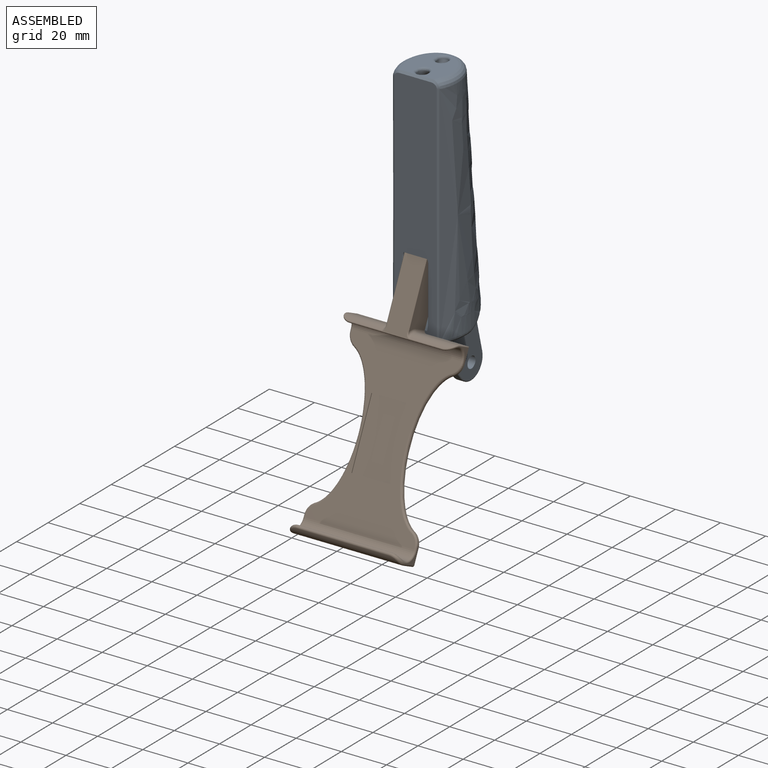
[diagram: assembled view]
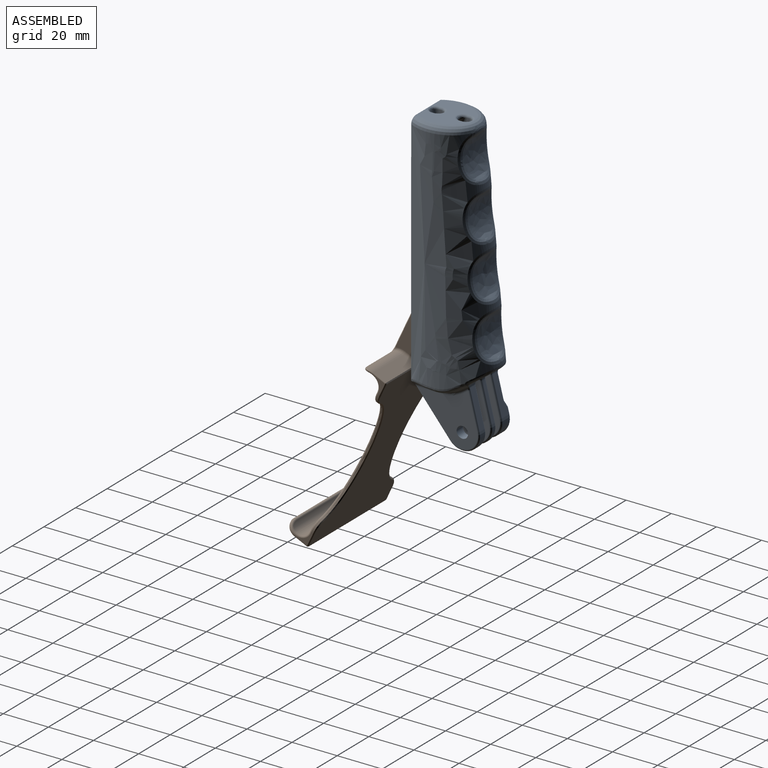
[diagram: assembled view, second angle]
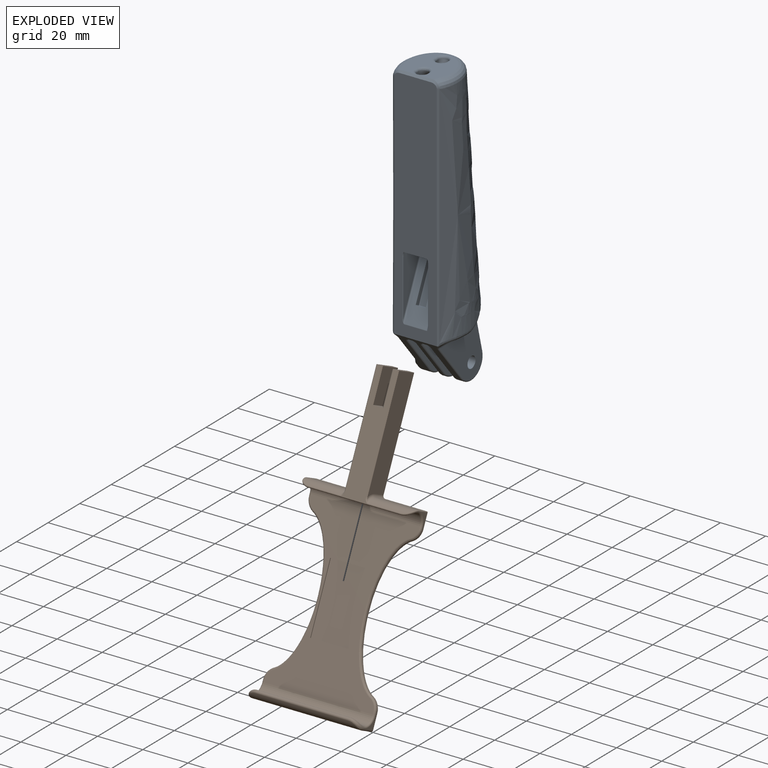
[diagram: exploded view]
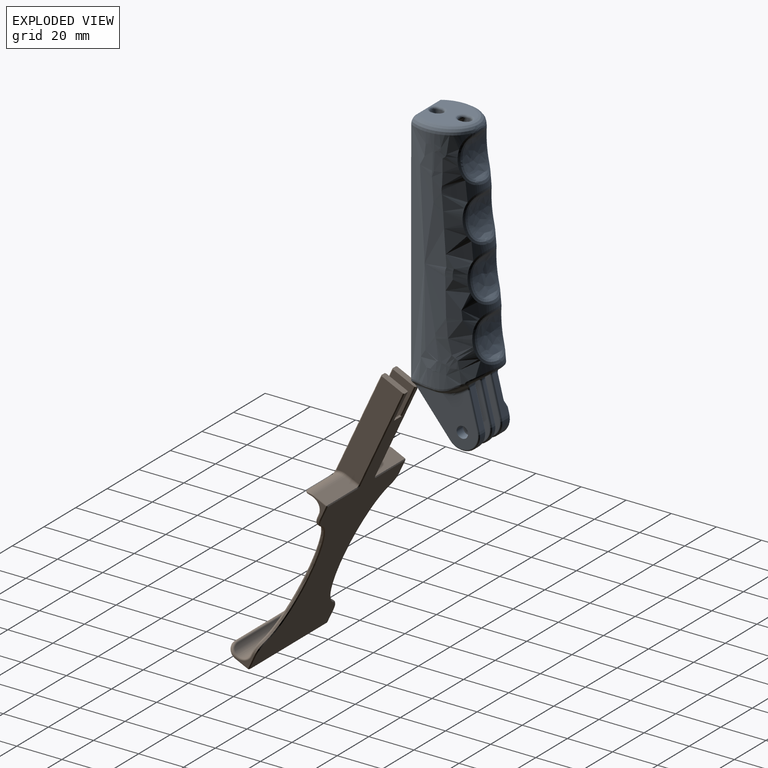
[diagram: exploded view, second angle]
ASSEMBLY  parts=2 mates=2
PART A: 201 faces, bbox 28.1x37x129.2 mm
  f0: plane 20.36x19.08mm, normal (0,0,1), area 246.6mm2, adj f1,f186,f187,f192,f193,f194,f195,f196
  f1: plane 13.96x0.9mm, normal (0,-0.71,0.71), area 17.8mm2, adj f0,f2,f184,f185
  f2: plane 105.15x19.08mm, normal (0,-1,0), area 1653.7mm2, adj f1,f3,f140,f141,f142,f143,f144,f177
  f3: bspline ~1.57x1.53mm, area 0.8mm2, adj f2,f4,f139,f140,f143
  f4: bspline ~2.24x1.94mm, area 2.6mm2, adj f3,f5,f138,f143
  f5: cylinder r=0.8mm len=12.85mm, axis (0,0.64,-0.77), area 20.2mm2, adj f4,f6,f137,f143
  f6: bspline ~2.13x1.36mm, area 1.6mm2, adj f5,f7,f136,f143
  f7: bspline ~4.3x3.46mm, area 1.8mm2, adj f6,f8,f135,f143
  f8: sphere r=0.8mm, area 0.1mm2, adj f7,f9,f134
  f9: cylinder r=0.8mm len=2.47mm, axis (0,0.64,-0.77), area 3.2mm2, adj f8,f10,f133,f143
  f10: torus R=6.7mm, axis (-1,0,0), area 24.4mm2, adj f9,f11,f132,f133
  f11: cylinder r=7.5mm len=13.25mm, axis (-1,0,0), area 85.9mm2, adj f10,f12,f131,f143
  f12: torus R=6.7mm, axis (1,0,0), area 24.4mm2, adj f11,f13,f129,f130
  f13: plane 26.28x25.23mm, normal (1,0,0), area 361.9mm2, adj f12,f14,f117,f118,f119,f129,f130
  f14: cylinder r=1mm len=22.3mm, axis (0,-0.97,-0.25), area 35.1mm2, adj f13,f15,f116,f117
  f15: plane 22.05x5.67mm, normal (0,0.25,-0.97), area 29.6mm2, adj f14,f16,f114,f115
  f16: cylinder r=8mm len=2.42mm, axis (1,0,0), area 3.5mm2, adj f15,f17,f113,f117
  f17: torus R=9mm, axis (1,0,0), area 2.2mm2, adj f16,f18,f111,f112,f115
  f18: cylinder r=1mm len=0.07mm, axis (0,0.83,0.55), area 0mm2, adj f17,f19,f113
  f19: bspline ~0.2x0.19mm, area 0mm2, adj f18,f20,f111
  f20: cylinder r=2mm len=5.1mm, axis (-1,0,0), area 6.6mm2, adj f19,f21,f107,f108,f109,f110,f111,f113
  f21: bspline ~0.2x0.19mm, area 0mm2, adj f20,f22,f107
  f22: cylinder r=1mm len=0.07mm, axis (0,0.83,0.55), area 0mm2, adj f21,f23,f113
  f23: torus R=9mm, axis (1,0,0), area 2.2mm2, adj f22,f24,f105,f106,f107
  f24: plane 26.28x25.23mm, normal (1,0,0), area 361.9mm2, adj f23,f25,f31,f101,f102,f106,f108
  f25: torus R=6.7mm, axis (1,0,0), area 24.4mm2, adj f24,f26,f31,f101
  f26: cylinder r=7.5mm len=13.25mm, axis (-1,0,0), area 30.3mm2, adj f25,f27,f109,f143
  f27: torus R=6.7mm, axis (1,0,0), area 24.4mm2, adj f26,f28,f30,f112
  f28: cylinder r=0.8mm len=17.74mm, axis (0,0.64,-0.77), area 28.3mm2, adj f27,f29,f112,f143
  f29: bspline ~2.11x2.08mm, area 2.4mm2, adj f28,f114,f115,f143
  f30: cylinder r=0.8mm len=16.63mm, axis (0,-0.25,0.97), area 21.3mm2, adj f27,f109,f110,f112
  f31: cylinder r=0.8mm len=17.74mm, axis (0,-0.64,0.77), area 28.3mm2, adj f24,f25,f32,f143
  f32: bspline ~1.9x1.88mm, area 2.4mm2, adj f31,f33,f106,f143
  f33: cylinder r=0.8mm len=1.3mm, axis (1,0,0), area 1.2mm2, adj f32,f34,f100,f143
  f34: plane 22.05x5.67mm, normal (0,0.25,-0.97), area 29.6mm2, adj f33,f35,f105,f106
  f35: cylinder r=1mm len=22.3mm, axis (0,0.97,0.25), area 35.1mm2, adj f34,f36,f99,f100
  f36: plane 26.28x25.23mm, normal (-1,0,0), area 361.9mm2, adj f35,f37,f38,f96,f97,f98,f99
  f37: cylinder r=0.8mm len=17.74mm, axis (0,0.64,-0.77), area 28.3mm2, adj f36,f38,f100,f143
  f38: torus R=6.7mm, axis (1,0,0), area 24.4mm2, adj f36,f37,f39,f96
  f39: cylinder r=7.5mm len=13.25mm, axis (-1,0,0), area 57.6mm2, adj f38,f40,f95,f143
  f40: torus R=6.8mm, axis (1,0,0), area 21.5mm2, adj f39,f41,f93,f94
  f41: plane 26.59x24.02mm, normal (1,0,0), area 329.4mm2, adj f40,f42,f43,f90,f91,f93,f94
  f42: cylinder r=2.55mm len=5.1mm, axis (1,0,0), area 63.3mm2, adj f41,f98
  f43: torus R=17mm, axis (1,0,0), area 28.8mm2, adj f41,f44,f89,f90,f91
  f44: bspline ~4.81x4.17mm, area 2.8mm2, adj f43,f45,f49,f88
  f45: bspline ~10.99x4.6mm, area 24.1mm2, adj f44,f46,f49,f89
  f46: bspline ~8.95x3.33mm, area 19.6mm2, adj f45,f47,f48,f49
  f47: plane 5.86x0.78mm, normal (0,0,-1), area 2.9mm2, adj f46,f89,f91
  f48: bspline ~10.98x4.25mm, area 18.8mm2, adj f46,f49,f91,f141,f142
  f49: bspline ~102.23x36.94mm, area 5468.5mm2, adj f44,f45,f46,f48,f50,f51,f53,f54
  f50: bspline ~21.29x18.54mm, area 131.7mm2, adj f49
  f51: bspline ~21.2x18.42mm, area 129.9mm2, adj f49,f52
  f52: extruded ~17.3x14.79mm, area 238.5mm2, adj f51
  f53: bspline ~21.16x18.39mm, area 129mm2, adj f49
  f54: bspline ~20.82x18.46mm, area 116.3mm2, adj f49,f55,f56
  f55: extruded ~17.25x14.81mm, area 238.3mm2, adj f54,f56
  f56: bspline ~6.77x3.07mm, area 17.1mm2, adj f54,f55,f186
  f57: bspline ~11.04x3.34mm, area 19.6mm2, adj f49,f58,f74,f139
  f58: plane 5.84x0.78mm, normal (0,0,-1), area 2.9mm2, adj f57,f59,f138
  f59: cylinder r=15mm len=7.47mm, axis (1,0,0), area 3mm2, adj f58,f60,f74
  f60: torus R=17mm, axis (1,0,0), area 28.8mm2, adj f59,f61,f75,f137,f138
  f61: cylinder r=2mm len=4.54mm, axis (0,0.83,0.55), area 8.7mm2, adj f60,f62,f64,f69,f76,f137
  f62: bspline ~0.86x0.59mm, area 0.2mm2, adj f61,f63,f64,f77
  f63: bspline ~1.49x1.26mm, area 0.3mm2, adj f62,f76,f77
  f64: bspline ~2.07x1.82mm, area 1.6mm2, adj f61,f62,f65,f69
  f65: cylinder r=2mm len=5.95mm, axis (-1,0,0), area 10.3mm2, adj f64,f66,f68,f77,f113,f118,f131
  f66: bspline ~0.2x0.19mm, area 0mm2, adj f65,f67,f68
  f67: cylinder r=1mm len=0.07mm, axis (0,0.83,0.55), area 0mm2, adj f66,f113,f117
  f68: bspline ~2.1x1.77mm, area 1.8mm2, adj f65,f66,f117,f118
  f69: bspline ~1.14x0.91mm, area 1mm2, adj f61,f64,f70,f131
  f70: cylinder r=0.8mm len=9.4mm, axis (0,-0.25,0.97), area 11.9mm2, adj f69,f71,f131,f137
  f71: bspline ~1.89x1.28mm, area 1.6mm2, adj f70,f72,f131,f136
  f72: bspline ~5.04x2.66mm, area 1.8mm2, adj f71,f73,f131,f135
  f73: sphere r=0.8mm, area 0.1mm2, adj f72,f132,f134
  f74: bspline ~11.02x4.62mm, area 24.3mm2, adj f49,f57,f59,f75
  f75: bspline ~4.63x4.05mm, area 2.7mm2, adj f49,f60,f74,f76
  f76: bspline ~5.88x4.59mm, area 10.4mm2, adj f49,f61,f63,f75
  f77: bspline ~3.33x3.31mm, area 3.9mm2, adj f49,f62,f63,f65,f78
  f78: bspline ~23.48x9.24mm, area 62.2mm2, adj f49,f77,f79,f113
  f79: bspline ~3.35x3.34mm, area 4mm2, adj f49,f78,f80,f86,f87
  f80: cylinder r=2mm len=5.95mm, axis (-1,0,0), area 10.4mm2, adj f79,f81,f83,f84,f95,f97,f113
  f81: bspline ~2.02x1.72mm, area 1.4mm2, adj f80,f82,f86,f90
  f82: bspline ~1.08x0.81mm, area 0.9mm2, adj f81,f90,f93,f95
  f83: bspline ~2.1x1.77mm, area 1.8mm2, adj f80,f84,f97,f99
  f84: bspline ~0.2x0.19mm, area 0mm2, adj f80,f83,f85
  f85: cylinder r=1mm len=0.07mm, axis (0,0.83,0.55), area 0mm2, adj f84,f99,f113
  f86: bspline ~0.7x0.52mm, area 0.2mm2, adj f79,f81,f87,f90
  f87: bspline ~1.68x1.64mm, area 0.3mm2, adj f79,f86,f88
  f88: bspline ~5.88x4.58mm, area 10.3mm2, adj f44,f49,f87,f90
  f89: cylinder r=15mm len=7.43mm, axis (1,0,0), area 3mm2, adj f43,f45,f47
  f90: cylinder r=2mm len=4.55mm, axis (0,-0.83,-0.55), area 8.9mm2, adj f41,f43,f81,f82,f86,f88
  f91: cylinder r=2mm len=12.44mm, axis (0,-1,0), area 32.5mm2, adj f41,f43,f47,f48,f92
  f92: bspline ~2.31x2.11mm, area 2.2mm2, adj f91,f94,f142,f143
  f93: cylinder r=0.7mm len=15.7mm, axis (0,0.25,-0.97), area 17.6mm2, adj f40,f41,f82,f95
  f94: cylinder r=0.7mm len=17.82mm, axis (0,-0.64,0.77), area 24.9mm2, adj f40,f41,f92,f143
  f95: plane 16.43x4.23mm, normal (0,0.97,0.25), area 48.4mm2, adj f39,f80,f82,f93,f96
  f96: cylinder r=0.8mm len=16.63mm, axis (0,-0.25,0.97), area 21.3mm2, adj f36,f38,f95,f97
  f97: torus R=2.8mm, axis (1,0,0), area 0.5mm2, adj f36,f80,f83,f96
  f98: cone r=2.55mm half-angle=45deg, axis (-1,0,0), area 9.8mm2, adj f36,f42
  f99: torus R=9mm, axis (1,0,0), area 2.2mm2, adj f35,f36,f83,f85,f105
  f100: bspline ~2.11x2.08mm, area 2.4mm2, adj f33,f35,f37,f143
  f101: cylinder r=0.8mm len=16.63mm, axis (0,0.25,-0.97), area 21.3mm2, adj f24,f25,f108,f109
  f102: cone r=2.95mm half-angle=45deg, axis (1,0,0), area 9.8mm2, adj f24,f103
  f103: cylinder r=2.55mm len=5.1mm, axis (1,0,0), area 36.9mm2, adj f102,f104
  f104: cone r=2.55mm half-angle=45deg, axis (-1,0,0), area 9.8mm2, adj f103,f112
  f105: cylinder r=8mm len=2.42mm, axis (1,0,0), area 3.5mm2, adj f23,f34,f99,f113
  f106: cylinder r=1mm len=22.3mm, axis (0,-0.97,-0.25), area 35.1mm2, adj f23,f24,f32,f34
  f107: bspline ~2.1x1.77mm, area 1.8mm2, adj f20,f21,f23,f108
  f108: torus R=2.8mm, axis (1,0,0), area 0.5mm2, adj f20,f24,f101,f107
  f109: plane 16.43x4.23mm, normal (0,0.97,0.25), area 25.4mm2, adj f20,f26,f30,f101
  f110: torus R=2.8mm, axis (1,0,0), area 0.5mm2, adj f20,f30,f111,f112
  f111: bspline ~2.1x1.77mm, area 1.8mm2, adj f17,f19,f20,f110
  f112: plane 26.28x25.23mm, normal (-1,0,0), area 361.9mm2, adj f17,f27,f28,f30,f104,f110,f115
  f113: plane 17.98x5.86mm, normal (0,0.55,-0.83), area 86.5mm2, adj f16,f18,f20,f22,f65,f67,f78,f80
  f114: cylinder r=0.8mm len=1.3mm, axis (1,0,0), area 1.2mm2, adj f15,f29,f116,f143
  f115: cylinder r=1mm len=22.3mm, axis (0,0.97,0.25), area 35.1mm2, adj f15,f17,f29,f112
  f116: bspline ~1.9x1.88mm, area 2.4mm2, adj f14,f114,f130,f143
  f117: torus R=9mm, axis (1,0,0), area 2.2mm2, adj f13,f14,f16,f67,f68
  f118: torus R=2.8mm, axis (1,0,0), area 0.5mm2, adj f13,f65,f68,f129
  f119: cone r=2.95mm half-angle=45deg, axis (1,0,0), area 9.8mm2, adj f13,f120
  f120: cylinder r=2.55mm len=5.1mm, axis (1,0,0), area 26.4mm2, adj f119,f121
  f121: cone r=2.95mm half-angle=45deg, axis (-1,0,0), area 9.8mm2, adj f120,f122
  f122: plane 9.7x8.4mm, normal (-1,0,0), area 33.8mm2, adj f121,f123,f124,f125,f126,f127,f128
  f123: plane 4.85x3.4mm, normal (0,0,1), area 16.5mm2, adj f122,f124,f128,f133
  f124: plane 4.2x3.4mm, normal (0,-0.87,0.5), area 16.5mm2, adj f122,f123,f125,f133
  f125: plane 4.2x3.4mm, normal (0,-0.87,-0.5), area 16.5mm2, adj f122,f124,f126,f133
  f126: plane 4.85x3.4mm, normal (0,0,-1), area 16.5mm2, adj f122,f125,f127,f133
  f127: plane 4.2x3.4mm, normal (0,0.87,-0.5), area 16.5mm2, adj f122,f126,f128,f133
  f128: plane 4.2x3.4mm, normal (0,0.87,0.5), area 16.5mm2, adj f122,f123,f127,f133
  f129: cylinder r=0.8mm len=16.63mm, axis (0,0.25,-0.97), area 21.3mm2, adj f12,f13,f118,f131
  f130: cylinder r=0.8mm len=17.74mm, axis (0,-0.64,0.77), area 28.3mm2, adj f12,f13,f116,f143
  f131: plane 16.43x4.25mm, normal (0,0.97,0.25), area 53mm2, adj f11,f65,f69,f70,f71,f72,f129,f132
  f132: cylinder r=0.8mm len=2.67mm, axis (0,0.25,-0.97), area 3.2mm2, adj f10,f73,f131,f133
  f133: plane 13.87x13.87mm, normal (-1,0,0), area 90mm2, adj f9,f10,f123,f124,f125,f126,f127,f128
  f134: torus R=7.17mm, axis (-1,0,0), area 13.4mm2, adj f8,f73,f133,f135
  f135: cone r=7.5mm half-angle=45deg, axis (1,0,0), area 31.3mm2, adj f7,f72,f134,f136
  f136: torus R=9.33mm, axis (1,0,0), area 12.5mm2, adj f6,f71,f135,f137
  f137: plane 24.53x16.49mm, normal (-1,0,0), area 150.9mm2, adj f5,f60,f61,f70,f136,f138
  f138: cylinder r=2mm len=12.39mm, axis (0,1,0), area 32.4mm2, adj f4,f58,f60,f137,f139
  f139: bspline ~10.99x4.26mm, area 18.8mm2, adj f3,f49,f57,f138,f140
  f140: bspline ~102.99x0.94mm, area 90.1mm2, adj f2,f3,f49,f139,f184
  f141: bspline ~108.39x0.81mm, area 90.5mm2, adj f2,f48,f49,f142,f185
  f142: bspline ~1.51x1.45mm, area 0.7mm2, adj f2,f48,f92,f141,f143
  f143: plane 19.82x19.36mm, normal (0,-0.77,-0.64), area 209.4mm2, adj f2,f3,f4,f5,f6,f7,f9,f11
  f144: plane 9.8x0.08mm, normal (0,-0.98,0.22), area 0.8mm2, adj f2,f145,f177,f183
  f145: plane 41.65x19.42mm, normal (0,-0.91,0.42), area 306.1mm2, adj f144,f146,f152,f153,f154,f155,f156,f157
  f146: plane 10.69x4.99mm, normal (0,-0.42,-0.91), area 41.7mm2, adj f145,f147,f148,f151,f152,f159
  f147: cylinder r=0.6mm len=19.75mm, axis (0,0.42,0.91), area 19.5mm2, adj f146,f148,f151,f181
  f148: plane 17.94x9.8mm, normal (0,0.91,-0.42), area 139.8mm2, adj f146,f147,f149,f152,f153,f154,f155,f156
  f149: cylinder r=0.6mm len=19.75mm, axis (0,-0.42,-0.91), area 19.5mm2, adj f148,f150,f157,f179
  f150: plane 44.58x18.7mm, normal (-1,0,0), area 348.5mm2, adj f149,f157,f158,f178
  f151: plane 44.58x18.7mm, normal (1,0,0), area 348.5mm2, adj f146,f147,f159,f182
  f152: plane 16.77x16.19mm, normal (-1,0,0), area 153.4mm2, adj f145,f146,f148,f153
  f153: cylinder r=1mm len=11.12mm, axis (0,-0.91,0.42), area 18.5mm2, adj f145,f148,f152,f154
  f154: plane 10.69x4.99mm, normal (0,-0.42,-0.91), area 22.4mm2, adj f145,f148,f153,f155
  f155: cylinder r=1mm len=11.12mm, axis (0,0.91,-0.42), area 18.5mm2, adj f145,f148,f154,f156
  f156: plane 16.77x16.19mm, normal (1,0,0), area 153.4mm2, adj f145,f148,f155,f157
  f157: plane 10.69x4.99mm, normal (0,-0.42,-0.91), area 41.7mm2, adj f145,f148,f149,f150,f156,f158
  f158: cylinder r=0.6mm len=41.9mm, axis (0,0.42,0.91), area 42.5mm2, adj f145,f150,f157,f177
  f159: cylinder r=0.6mm len=41.9mm, axis (0,-0.42,-0.91), area 42.5mm2, adj f145,f146,f151,f183
  f160: cylinder r=0.3mm len=1.94mm, axis (0,0.91,-0.42), area 0.9mm2, adj f145,f161,f170,f176
  f161: sphere r=0.3mm, area 0.1mm2, adj f160,f162,f169
  f162: cylinder r=0.3mm len=18.16mm, axis (0,0.42,0.91), area 9.4mm2, adj f161,f163,f168,f176
  f163: sphere r=0.3mm, area 0.2mm2, adj f162,f164,f175
  f164: cylinder r=0.3mm len=3.8mm, axis (1,0,0), area 1.8mm2, adj f163,f165,f168,f174
  f165: sphere r=0.3mm, area 0.2mm2, adj f164,f166,f173
  f166: cylinder r=0.3mm len=18.16mm, axis (0,-0.42,-0.91), area 9.4mm2, adj f165,f167,f168,f172
  f167: sphere r=0.3mm, area 0.1mm2, adj f166,f169,f171
  f168: plane 18.04x8.41mm, normal (0,-0.91,0.42), area 75.6mm2, adj f162,f164,f166,f169
  f169: cylinder r=0.3mm len=3.8mm, axis (-1,0,0), area 1.8mm2, adj f161,f167,f168,f170
  f170: plane 3.8x1.81mm, normal (0,-0.42,-0.91), area 7.6mm2, adj f145,f160,f169,f171
  f171: cylinder r=0.3mm len=1.94mm, axis (0,-0.91,0.42), area 0.9mm2, adj f145,f167,f170,f172
  f172: plane 18.88x10.22mm, normal (1,0,0), area 39.8mm2, adj f145,f166,f171,f173
  f173: cylinder r=0.3mm len=1.94mm, axis (0,0.91,-0.42), area 0.9mm2, adj f145,f165,f172,f174
  f174: plane 3.8x1.81mm, normal (0,0.42,0.91), area 7.6mm2, adj f145,f164,f173,f175
  f175: cylinder r=0.3mm len=1.94mm, axis (0,-0.91,0.42), area 0.9mm2, adj f145,f163,f174,f176
  f176: plane 18.88x10.22mm, normal (-1,0,0), area 39.8mm2, adj f145,f160,f162,f175
  f177: bspline ~1.92x0.81mm, area 0.4mm2, adj f2,f144,f158,f178
  f178: plane 25.08x0.2mm, normal (-0.71,-0.71,0), area 7.1mm2, adj f2,f150,f177,f179
  f179: bspline ~1.92x0.81mm, area 0.7mm2, adj f2,f149,f178,f180
  f180: plane 9.8x0.38mm, normal (0,-0.22,-0.98), area 3.8mm2, adj f2,f148,f179,f181
  f181: bspline ~1.92x0.81mm, area 0.7mm2, adj f2,f147,f180,f182
  f182: plane 25.08x0.2mm, normal (0.71,-0.71,0), area 7.1mm2, adj f2,f151,f181,f183
  f183: bspline ~1.92x0.81mm, area 0.4mm2, adj f2,f144,f159,f182
  f184: bspline ~3.29x3.02mm, area 4.5mm2, adj f1,f2,f140,f186
  f185: bspline ~3.29x3mm, area 4.5mm2, adj f1,f2,f141,f186
  f186: bspline ~26.49x25.08mm, area 268.8mm2, adj f0,f49,f56,f184,f185
  f187: cylinder r=1mm len=1.01mm, axis (0,1,0), area 1.6mm2, adj f0,f188,f192,f194
  f188: plane 13.45x5.8mm, normal (1,0,0), area 17.8mm2, adj f187,f189,f191,f196
  f189: torus R=6.8mm, axis (1,0,0), area 165.1mm2, adj f188,f190,f194,f197
  f190: plane 13.45x5.8mm, normal (-1,0,0), area 17.8mm2, adj f189,f191,f193,f198
  f191: torus R=5.8mm, axis (1,0,0), area 78.7mm2, adj f188,f190,f192,f195
  f192: bspline ~6.4x4.04mm, area 14.3mm2, adj f0,f187,f191,f193
  f193: cylinder r=1mm len=1.01mm, axis (0,-1,0), area 1.6mm2, adj f0,f190,f192,f194
  f194: bspline ~6.4x3.96mm, area 12.2mm2, adj f0,f187,f189,f193
  f195: bspline ~6.4x4.04mm, area 14.3mm2, adj f0,f191,f196,f198
  f196: cylinder r=1mm len=1.01mm, axis (0,1,0), area 1.6mm2, adj f0,f188,f195,f197
  f197: bspline ~6.4x3.96mm, area 12.2mm2, adj f0,f189,f196,f198
  f198: cylinder r=1mm len=1.01mm, axis (0,-1,0), area 1.6mm2, adj f0,f190,f195,f197
  f199: extruded ~17.74x4.25mm, area 0mm2
  f200: extruded ~17.67x4.38mm, area 0mm2
PART B: 114 faces, bbox 130.5x51.3x13.8 mm
  f0: plane 5.1x1.1mm, normal (-1,0,0), area 3.6mm2, adj f12,f23,f24,f79,f83,f84,f112,f113
  f1: cylinder r=5.75mm len=18.4mm, axis (0,1,0), area 97.4mm2, adj f35,f70,f71,f72,f75
  f2: plane 6.19x6.15mm, normal (0,-1,0), area 11.1mm2, adj f10,f54,f56,f73,f101
  f3: plane 6.64x6.39mm, normal (0,1,0), area 12.4mm2, adj f9,f39,f43,f45,f60,f61,f93
  f4: plane 6.19x6.15mm, normal (0,1,0), area 11.1mm2, adj f8,f53,f55,f67,f89
  f5: plane 6.64x6.39mm, normal (0,-1,0), area 12.4mm2, adj f11,f37,f44,f46,f65,f66,f97
  f6: extruded ~58.35x10.74mm, area 51.7mm2, adj f10,f11,f50,f99
  f7: extruded ~58.35x10.74mm, area 51.7mm2, adj f8,f9,f49,f91
  f8: cylinder r=6mm len=5.34mm, axis (0,0,1), area 5.3mm2, adj f4,f7,f51,f90
  f9: cylinder r=6mm len=5.34mm, axis (0,0,1), area 5.3mm2, adj f3,f7,f47,f92
  f10: cylinder r=6mm len=5.34mm, axis (0,0,1), area 5.3mm2, adj f2,f6,f52,f100
  f11: cylinder r=6mm len=5.34mm, axis (0,0,1), area 5.3mm2, adj f5,f6,f48,f98
  f12: plane 129.5x49.21mm, normal (0,0,-1), area 3059.6mm2, adj f0,f13,f19,f85,f86,f87,f89,f90
  f13: plane 11.32x2.85mm, normal (-1,0,0), area 31.9mm2, adj f12,f18,f20,f23,f105,f106,f111,f112
  f14: plane 41x0.17mm, normal (-0.86,0,0.51), area 8.3mm2, adj f37,f39,f40,f63
  f15: plane 41x0.04mm, normal (0.86,0,0.51), area 1.9mm2, adj f36,f38,f59,f70
  f16: cylinder r=4.55mm len=48.4mm, axis (0,-1,0), area 526.2mm2, adj f25,f40,f41,f42,f43,f44
  f17: cylinder r=4.55mm len=48.4mm, axis (0,-1,0), area 526.2mm2, adj f25,f55,f56,f57,f58,f59
  f18: plane 49.8x11.78mm, normal (0,0,1), area 384.1mm2, adj f13,f19,f22,f70,f106,f107,f108,f109
  f19: plane 11.32x2.85mm, normal (-1,0,0), area 31.9mm2, adj f12,f18,f21,f24,f85,f108,f110,f113
  f20: plane 47.43x10.52mm, normal (0,-1,0), area 484.8mm2, adj f13,f74,f75,f105,f106
  f21: plane 47.43x10.52mm, normal (0,1,0), area 484.8mm2, adj f19,f76,f77,f85,f108
  f22: plane 8.42x5.1mm, normal (-1,0,0), area 35.1mm2, adj f18,f23,f24,f78,f81,f82,f110,f111
  f23: plane 38.6x10.52mm, normal (0,1,0), area 196.8mm2, adj f0,f13,f22,f80,f81,f84,f111,f112
  f24: plane 38.6x10.52mm, normal (0,-1,0), area 196.8mm2, adj f0,f19,f22,f80,f82,f83,f110,f113
  f25: plane 70.7x48.4mm, normal (0,0,1), area 1505.7mm2, adj f16,f17,f28,f29,f30,f31,f45,f46
  f26: plane 48.4x6.15mm, normal (1,0,0), area 297.7mm2, adj f27,f60,f66,f95
  f27: cylinder r=6.35mm len=48.4mm, axis (0,-1,0), area 266.1mm2, adj f26,f61,f62,f63,f64,f65
  f28: plane 19x0.4mm, normal (-1,0,0), area 7.6mm2, adj f25,f29,f31,f32
  f29: plane 30x0.4mm, normal (0,-1,0), area 12mm2, adj f25,f28,f30,f32
  f30: plane 19x0.4mm, normal (1,0,0), area 7.6mm2, adj f25,f29,f31,f32
  f31: plane 30x0.4mm, normal (0,1,0), area 12mm2, adj f25,f28,f30,f32
  f32: plane 30x19mm, normal (0,0,1), area 570mm2, adj f28,f29,f30,f31
  f33: plane 18.4x6.15mm, normal (-1,0,0), area 113.2mm2, adj f34,f67,f76,f87
  f34: cylinder r=5.75mm len=18.4mm, axis (0,1,0), area 97.4mm2, adj f33,f68,f69,f70,f77
  f35: plane 18.4x6.15mm, normal (-1,0,0), area 113.2mm2, adj f1,f73,f74,f103
  f36: cylinder r=4.5mm len=5.12mm, axis (0.51,0,-0.86), area 0.5mm2, adj f15,f58,f71
  f37: cylinder r=4.5mm len=5.2mm, axis (0.51,0,0.86), area 1.6mm2, adj f5,f14,f42,f64
  f38: cylinder r=4.5mm len=5.12mm, axis (-0.51,0,0.86), area 0.5mm2, adj f15,f57,f69
  f39: cylinder r=4.5mm len=5.2mm, axis (-0.51,0,-0.86), area 1.6mm2, adj f3,f14,f41,f62
  f40: cylinder r=0.8mm len=41mm, axis (0,-1,0), area 46.6mm2, adj f14,f16,f41,f42
  f41: bspline ~5.68x5.56mm, area 7.7mm2, adj f16,f39,f40,f43
  f42: bspline ~5.68x5.56mm, area 7.7mm2, adj f16,f37,f40,f44
  f43: torus R=5.35mm, axis (0,1,0), area 9.8mm2, adj f3,f16,f41,f45
  f44: torus R=5.35mm, axis (0,1,0), area 9.8mm2, adj f5,f16,f42,f46
  f45: cylinder r=0.8mm len=0.84mm, axis (1,0,0), area 1.1mm2, adj f3,f25,f43,f47
  f46: cylinder r=0.8mm len=0.84mm, axis (-1,0,0), area 1.1mm2, adj f5,f25,f44,f48
  f47: torus R=5.2mm, axis (0,0,1), area 7.9mm2, adj f9,f25,f45,f49
  f48: torus R=5.2mm, axis (0,0,1), area 7.9mm2, adj f11,f25,f46,f50
  f49: bspline ~60.59x12.86mm, area 82mm2, adj f7,f25,f47,f51
  f50: bspline ~60.59x12.86mm, area 82mm2, adj f6,f25,f48,f52
  f51: torus R=5.2mm, axis (0,0,1), area 7.9mm2, adj f8,f25,f49,f53
  f52: torus R=5.2mm, axis (0,0,1), area 7.9mm2, adj f10,f25,f50,f54
  f53: cylinder r=0.8mm len=0.84mm, axis (1,0,0), area 1.1mm2, adj f4,f25,f51,f55
  f54: cylinder r=0.8mm len=0.84mm, axis (-1,0,0), area 1.1mm2, adj f2,f25,f52,f56
  f55: torus R=5.35mm, axis (0,1,0), area 9.8mm2, adj f4,f17,f53,f57,f68
  f56: torus R=5.35mm, axis (0,1,0), area 9.8mm2, adj f2,f17,f54,f58,f72
  f57: bspline ~5.68x5.56mm, area 7.7mm2, adj f17,f38,f55,f59
  f58: bspline ~5.68x5.56mm, area 7.7mm2, adj f17,f36,f56,f59
  f59: cylinder r=0.8mm len=41mm, axis (0,-1,0), area 46.6mm2, adj f15,f17,f57,f58
  f60: cylinder r=0.8mm len=6.15mm, axis (0,0,1), area 7.7mm2, adj f3,f26,f61,f94
  f61: torus R=5.55mm, axis (0,1,0), area 0.7mm2, adj f3,f27,f60,f62
  f62: bspline ~6.44x5.56mm, area 10.7mm2, adj f27,f39,f61,f63
  f63: cylinder r=0.8mm len=41mm, axis (0,-1,0), area 56.3mm2, adj f14,f27,f62,f64
  f64: bspline ~6.44x4.81mm, area 10.7mm2, adj f27,f37,f63,f65
  f65: torus R=5.55mm, axis (0,1,0), area 0.7mm2, adj f5,f27,f64,f66
  f66: cylinder r=0.8mm len=6.15mm, axis (0,0,-1), area 7.7mm2, adj f5,f26,f65,f96
  f67: cylinder r=0.4mm len=6.15mm, axis (0,0,1), area 3.9mm2, adj f4,f33,f68,f88
  f68: torus R=5.35mm, axis (0,1,0), area 0.1mm2, adj f34,f55,f67,f69
  f69: bspline ~5.53x5.51mm, area 5.4mm2, adj f34,f38,f68,f70
  f70: cylinder r=0.4mm len=41mm, axis (0,1,0), area 25.2mm2, adj f1,f15,f18,f34,f69,f71,f107,f109
  f71: bspline ~5.53x5.52mm, area 5.4mm2, adj f1,f36,f70,f72
  f72: torus R=5.35mm, axis (0,1,0), area 0.1mm2, adj f1,f56,f71,f73
  f73: cylinder r=0.4mm len=6.15mm, axis (0,0,1), area 3.9mm2, adj f2,f35,f72,f102
  f74: cylinder r=1.2mm len=6.15mm, axis (0,0,1), area 11.6mm2, adj f20,f35,f75,f104
  f75: torus R=6.95mm, axis (0,-1,0), area 9.5mm2, adj f1,f20,f74,f107
  f76: cylinder r=1.2mm len=6.15mm, axis (0,0,-1), area 11.6mm2, adj f21,f33,f77,f86
  f77: torus R=6.95mm, axis (0,-1,0), area 9.5mm2, adj f21,f34,f76,f109
  f78: plane 24x3.7mm, normal (0,0,-1), area 88.8mm2, adj f22,f80,f81,f82
  f79: plane 24x3.7mm, normal (0,0,1), area 88.8mm2, adj f0,f80,f83,f84
  f80: plane 4.3x2.4mm, normal (-1,0,0), area 10.2mm2, adj f23,f24,f78,f79,f81,f82,f83,f84
  f81: cylinder r=0.3mm len=24mm, axis (-1,0,0), area 11.3mm2, adj f22,f23,f78,f80
  f82: cylinder r=0.3mm len=24mm, axis (1,0,0), area 11.3mm2, adj f22,f24,f78,f80
  f83: cylinder r=0.3mm len=24mm, axis (-1,0,0), area 11.3mm2, adj f0,f24,f79,f80
  f84: cylinder r=0.3mm len=24mm, axis (1,0,0), area 11.3mm2, adj f0,f23,f79,f80
  f85: plane 45.89x0.4mm, normal (0,0.71,-0.71), area 26mm2, adj f12,f19,f21,f86
  f86: cone r=1.6mm half-angle=45deg, axis (0,0,-1), area 1.2mm2, adj f12,f76,f85,f87
  f87: plane 18.4x0.4mm, normal (-0.71,0,-0.71), area 10.4mm2, adj f12,f33,f86,f88
  f88: cone r=0.4mm half-angle=45deg, axis (0,0,1), area 0.2mm2, adj f67,f87,f89
  f89: plane 6.49x0.71mm, normal (0,0.71,-0.71), area 3.5mm2, adj f4,f12,f88,f90
  f90: cone r=5.6mm half-angle=45deg, axis (0,0,1), area 3.6mm2, adj f8,f12,f89,f91
  f91: bspline ~59.06x11.14mm, area 36.9mm2, adj f7,f12,f90,f92
  f92: cone r=5.6mm half-angle=45deg, axis (0,0,1), area 3.6mm2, adj f9,f12,f91,f93
  f93: plane 6.39x0.4mm, normal (0,0.71,-0.71), area 3.6mm2, adj f3,f12,f92,f94
  f94: cone r=0.4mm half-angle=45deg, axis (0,0,1), area 0.5mm2, adj f12,f60,f93,f95
  f95: plane 48.4x0.4mm, normal (0.71,0,-0.71), area 27.4mm2, adj f12,f26,f94,f96
  f96: cone r=0.4mm half-angle=45deg, axis (0,0,1), area 0.5mm2, adj f12,f66,f95,f97
  f97: plane 6.39x0.4mm, normal (0,-0.71,-0.71), area 3.6mm2, adj f5,f12,f96,f98
  f98: cone r=5.6mm half-angle=45deg, axis (0,0,1), area 3.6mm2, adj f11,f12,f97,f99
  f99: bspline ~59.06x11.14mm, area 36.9mm2, adj f6,f12,f98,f100
  f100: cone r=5.6mm half-angle=45deg, axis (0,0,1), area 3.6mm2, adj f10,f12,f99,f101
  f101: plane 6.19x0.4mm, normal (0,-0.71,-0.71), area 3.5mm2, adj f2,f12,f100,f102
  f102: cone r=0.4mm half-angle=45deg, axis (0,0,1), area 0.2mm2, adj f73,f101,f103
  f103: plane 18.4x0.4mm, normal (-0.71,0,-0.71), area 10.4mm2, adj f12,f35,f102,f104
  f104: cone r=1.6mm half-angle=45deg, axis (0,0,-1), area 1.2mm2, adj f12,f74,f103,f105
  f105: plane 45.89x0.4mm, normal (0,-0.71,-0.71), area 26mm2, adj f12,f13,f20,f104
  f106: plane 47.43x0.4mm, normal (0,-0.71,0.71), area 26.8mm2, adj f13,f18,f20,f107
  f107: bspline ~2.4x1.75mm, area 1.1mm2, adj f18,f70,f75,f106
  f108: plane 47.43x0.4mm, normal (0,0.71,0.71), area 26.8mm2, adj f18,f19,f21,f109
  f109: bspline ~2.4x1.75mm, area 1.1mm2, adj f18,f70,f77,f108
  f110: plane 14.6x0.4mm, normal (0,-0.71,0.71), area 8.3mm2, adj f18,f19,f22,f24
  f111: plane 14.6x0.4mm, normal (0,0.71,0.71), area 8.3mm2, adj f13,f18,f22,f23
  f112: plane 14.6x0.4mm, normal (0,0.71,-0.71), area 8.3mm2, adj f0,f12,f13,f23
  f113: plane 14.6x0.4mm, normal (0,-0.71,-0.71), area 8.3mm2, adj f0,f12,f19,f24
PLACE A t=(-0.98,-34.15,21.07)mm
PLACE B rot(axis=(0.47,0.47,-0.74),106.8deg) t=(-1.48,-63.86,-116.82)mm
MATE planar B.f13 <-> A.f146  axis (0,0.42,0.91) through (-6.48,-29,-35.77)mm
MATE planar B.f20 <-> A.f151  axis (-1,0,0) through (-6.48,-29,-35.77)mm
